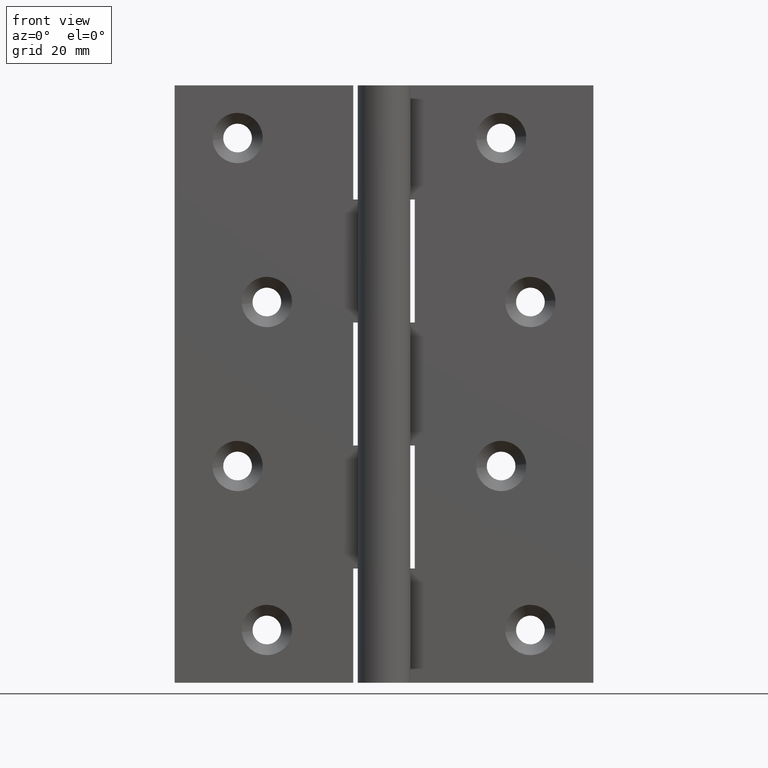
[diagram: clean part render]
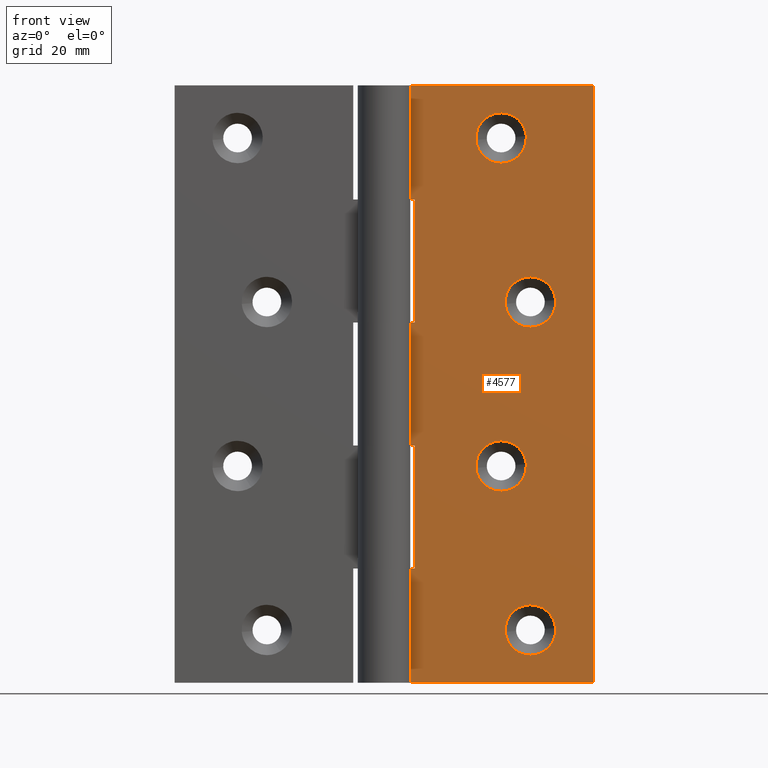
[diagram: same view with one face highlighted and labeled with its STEP entity id]
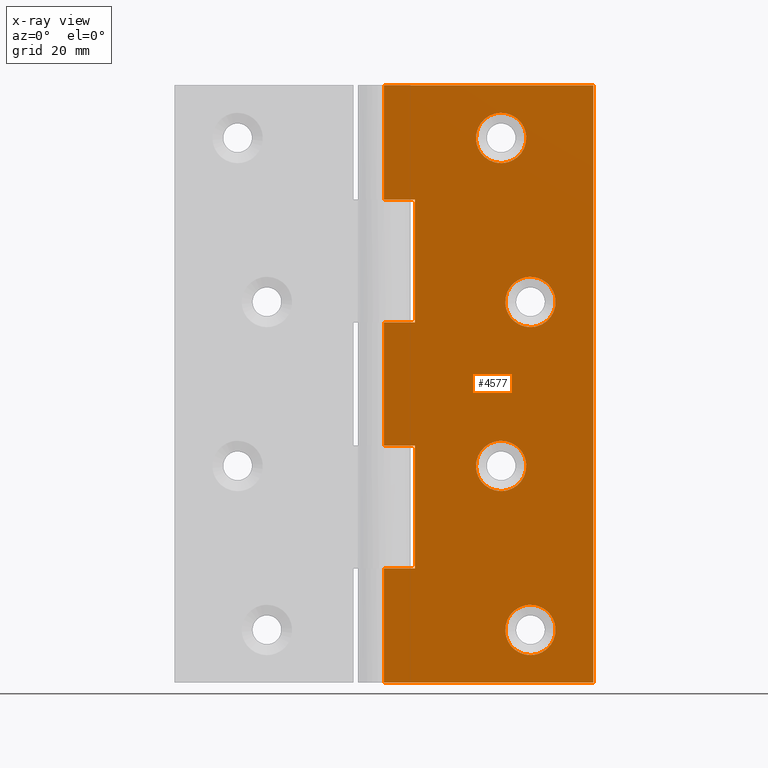
[diagram: x-ray of the same camera — body ghosted, the highlighted face saturated]
A machine part, front view. The second image highlights one B-rep face of the part: STEP entity #4577.
The next image is the same camera in x-ray: the body ghosted, the highlighted face saturated — about 0% of this face is hidden behind the body in this view.
In plain terms, the highlighted face is a freeform B-spline surface patch.
Its self-contained STEP definition (entity closure, byte-faithful):
#2656=CARTESIAN_POINT('',(29.286736546958579,2.499999999944479,9.337382112995051));
#2657=VERTEX_POINT('',#2656);
#2663=CARTESIAN_POINT('',(24.999992000000098,2.500000000000000,13.300008011920930));
#2664=VERTEX_POINT('',#2663);
#2665=CARTESIAN_POINT('',(24.999992000000098,2.500000000000000,13.300008011920930));
#2666=CARTESIAN_POINT('',(28.974871124358167,2.500000000000000,13.300008011920934));
#2667=CARTESIAN_POINT('',(29.286736546958579,2.499999999944480,9.337382112995051));
#2675=(BOUNDED_CURVE()B_SPLINE_CURVE(2,(#2665,#2666,#2667),.UNSPECIFIED.,.F.,.U.)B_SPLINE_CURVE_WITH_KNOTS((3,3),(0.0,0.236331300598724),.UNSPECIFIED.)CURVE()GEOMETRIC_REPRESENTATION_ITEM()RATIONAL_B_SPLINE_CURVE((1.0,0.723120658645081,0.969723356100769))REPRESENTATION_ITEM(''));
#2676=EDGE_CURVE('',#2664,#2657,#2675,.T.);
#2678=CARTESIAN_POINT('',(20.713247453041621,2.499999999944480,8.662633887004951));
#2679=VERTEX_POINT('',#2678);
#2680=CARTESIAN_POINT('',(20.713247453041618,2.499999999944480,8.662633887004951));
#2681=CARTESIAN_POINT('',(20.699991988079166,2.500000000000000,8.831060538971018));
#2682=CARTESIAN_POINT('',(20.699991988079169,2.500000000000000,9.000008000000001));
#2683=CARTESIAN_POINT('',(20.699991988079162,2.500000000000000,13.300008011920934));
#2684=CARTESIAN_POINT('',(24.999992000000098,2.500000000000000,13.300008011920930));
#2692=(BOUNDED_CURVE()B_SPLINE_CURVE(2,(#2680,#2681,#2682,#2683,#2684),.UNSPECIFIED.,.F.,.U.)B_SPLINE_CURVE_WITH_KNOTS((3,2,3),(0.736331300598723,0.750000000000000,1.0),.UNSPECIFIED.)CURVE()GEOMETRIC_REPRESENTATION_ITEM()RATIONAL_B_SPLINE_CURVE((0.969723356100769,0.983986122541466,1.0,0.707106781186548,1.0))REPRESENTATION_ITEM(''));
#2693=EDGE_CURVE('',#2679,#2664,#2692,.T.);
#2730=CARTESIAN_POINT('',(24.999992000000098,2.500000000000000,4.700007988079070));
#2731=VERTEX_POINT('',#2730);
#2732=CARTESIAN_POINT('',(24.999992000000098,2.500000000000000,4.700007988079070));
#2733=CARTESIAN_POINT('',(21.025112875642009,2.500000000000000,4.700007988079070));
#2734=CARTESIAN_POINT('',(20.713247453041614,2.499999999944481,8.662633887004949));
#2742=(BOUNDED_CURVE()B_SPLINE_CURVE(2,(#2732,#2733,#2734),.UNSPECIFIED.,.F.,.U.)B_SPLINE_CURVE_WITH_KNOTS((3,3),(0.500000000000000,0.736331300598724),.UNSPECIFIED.)CURVE()GEOMETRIC_REPRESENTATION_ITEM()RATIONAL_B_SPLINE_CURVE((1.0,0.723120658645080,0.969723356100771))REPRESENTATION_ITEM(''));
#2743=EDGE_CURVE('',#2731,#2679,#2742,.T.);
#2745=CARTESIAN_POINT('',(29.286736546958579,2.499999999944479,9.337382112995051));
#2746=CARTESIAN_POINT('',(29.299992011921031,2.500000000000000,9.168955461028986));
#2747=CARTESIAN_POINT('',(29.299992011921031,2.500000000000000,9.000008000000001));
#2748=CARTESIAN_POINT('',(29.299992011921038,2.500000000000000,4.700007988079069));
#2749=CARTESIAN_POINT('',(24.999992000000098,2.500000000000000,4.700007988079070));
#2757=(BOUNDED_CURVE()B_SPLINE_CURVE(2,(#2745,#2746,#2747,#2748,#2749),.UNSPECIFIED.,.F.,.U.)B_SPLINE_CURVE_WITH_KNOTS((3,2,3),(0.236331300598724,0.250000000000000,0.500000000000000),.UNSPECIFIED.)CURVE()GEOMETRIC_REPRESENTATION_ITEM()RATIONAL_B_SPLINE_CURVE((0.969723356100770,0.983986122541467,1.0,0.707106781186548,1.0))REPRESENTATION_ITEM(''));
#2758=EDGE_CURVE('',#2657,#2731,#2757,.T.);
#2984=CARTESIAN_POINT('',(24.286736546958480,2.499999999944481,37.337382112995051));
#2985=VERTEX_POINT('',#2984);
#2991=CARTESIAN_POINT('',(19.999991999999999,2.500000000000000,41.300008011920930));
#2992=VERTEX_POINT('',#2991);
#2993=CARTESIAN_POINT('',(19.999991999999999,2.500000000000000,41.300008011920930));
#2994=CARTESIAN_POINT('',(23.974871124358064,2.500000000000000,41.300008011920930));
#2995=CARTESIAN_POINT('',(24.286736546958480,2.499999999944480,37.337382112995058));
#3003=(BOUNDED_CURVE()B_SPLINE_CURVE(2,(#2993,#2994,#2995),.UNSPECIFIED.,.F.,.U.)B_SPLINE_CURVE_WITH_KNOTS((3,3),(0.0,0.236331300598724),.UNSPECIFIED.)CURVE()GEOMETRIC_REPRESENTATION_ITEM()RATIONAL_B_SPLINE_CURVE((1.0,0.723120658645081,0.969723356100769))REPRESENTATION_ITEM(''));
#3004=EDGE_CURVE('',#2992,#2985,#3003,.T.);
#3006=CARTESIAN_POINT('',(15.713247453041520,2.499999999944480,36.662633887004958));
#3007=VERTEX_POINT('',#3006);
#3008=CARTESIAN_POINT('',(15.713247453041520,2.499999999944480,36.662633887004958));
#3009=CARTESIAN_POINT('',(15.699991988079072,2.500000000000000,36.831060538971023));
#3010=CARTESIAN_POINT('',(15.699991988079070,2.500000000000000,37.000008000000001));
#3011=CARTESIAN_POINT('',(15.699991988079075,2.500000000000000,41.300008011920937));
#3012=CARTESIAN_POINT('',(19.999991999999999,2.500000000000000,41.300008011920930));
#3020=(BOUNDED_CURVE()B_SPLINE_CURVE(2,(#3008,#3009,#3010,#3011,#3012),.UNSPECIFIED.,.F.,.U.)B_SPLINE_CURVE_WITH_KNOTS((3,2,3),(0.736331300598724,0.750000000000000,1.0),.UNSPECIFIED.)CURVE()GEOMETRIC_REPRESENTATION_ITEM()RATIONAL_B_SPLINE_CURVE((0.969723356100770,0.983986122541467,1.0,0.707106781186548,1.0))REPRESENTATION_ITEM(''));
#3021=EDGE_CURVE('',#3007,#2992,#3020,.T.);
#3058=CARTESIAN_POINT('',(19.999991999999999,2.500000000000000,32.700007988079072));
#3059=VERTEX_POINT('',#3058);
#3060=CARTESIAN_POINT('',(19.999991999999999,2.500000000000000,32.700007988079072));
#3061=CARTESIAN_POINT('',(16.025112875641909,2.500000000000000,32.700007988079079));
#3062=CARTESIAN_POINT('',(15.713247453041518,2.499999999944480,36.662633887004958));
#3070=(BOUNDED_CURVE()B_SPLINE_CURVE(2,(#3060,#3061,#3062),.UNSPECIFIED.,.F.,.U.)B_SPLINE_CURVE_WITH_KNOTS((3,3),(0.500000000000000,0.736331300598724),.UNSPECIFIED.)CURVE()GEOMETRIC_REPRESENTATION_ITEM()RATIONAL_B_SPLINE_CURVE((1.0,0.723120658645080,0.969723356100771))REPRESENTATION_ITEM(''));
#3071=EDGE_CURVE('',#3059,#3007,#3070,.T.);
#3073=CARTESIAN_POINT('',(24.286736546958483,2.499999999944481,37.337382112995051));
#3074=CARTESIAN_POINT('',(24.299992011920935,2.500000000000000,37.168955461028986));
#3075=CARTESIAN_POINT('',(24.299992011920931,2.500000000000000,37.000008000000001));
#3076=CARTESIAN_POINT('',(24.299992011920931,2.500000000000000,32.700007988079079));
#3077=CARTESIAN_POINT('',(19.999991999999999,2.500000000000000,32.700007988079072));
#3085=(BOUNDED_CURVE()B_SPLINE_CURVE(2,(#3073,#3074,#3075,#3076,#3077),.UNSPECIFIED.,.F.,.U.)B_SPLINE_CURVE_WITH_KNOTS((3,2,3),(0.236331300598724,0.250000000000000,0.500000000000000),.UNSPECIFIED.)CURVE()GEOMETRIC_REPRESENTATION_ITEM()RATIONAL_B_SPLINE_CURVE((0.969723356100770,0.983986122541467,1.0,0.707106781186548,1.0))REPRESENTATION_ITEM(''));
#3086=EDGE_CURVE('',#2985,#3059,#3085,.T.);
#3312=CARTESIAN_POINT('',(29.286736546958579,2.499999999944480,65.337382112995044));
#3313=VERTEX_POINT('',#3312);
#3319=CARTESIAN_POINT('',(24.999992000000098,2.500000000000000,69.300008011920937));
#3320=VERTEX_POINT('',#3319);
#3321=CARTESIAN_POINT('',(24.999992000000098,2.500000000000000,69.300008011920937));
#3322=CARTESIAN_POINT('',(28.974871124358160,2.500000000000000,69.300008011920937));
#3323=CARTESIAN_POINT('',(29.286736546958579,2.499999999944480,65.337382112995044));
#3331=(BOUNDED_CURVE()B_SPLINE_CURVE(2,(#3321,#3322,#3323),.UNSPECIFIED.,.F.,.U.)B_SPLINE_CURVE_WITH_KNOTS((3,3),(0.0,0.236331300598723),.UNSPECIFIED.)CURVE()GEOMETRIC_REPRESENTATION_ITEM()RATIONAL_B_SPLINE_CURVE((1.0,0.723120658645081,0.969723356100769))REPRESENTATION_ITEM(''));
#3332=EDGE_CURVE('',#3320,#3313,#3331,.T.);
#3334=CARTESIAN_POINT('',(20.713247453041621,2.499999999944480,64.662633887004944));
#3335=VERTEX_POINT('',#3334);
#3336=CARTESIAN_POINT('',(20.713247453041618,2.499999999944480,64.662633887004944));
#3337=CARTESIAN_POINT('',(20.699991988079166,2.500000000000000,64.831060538971016));
#3338=CARTESIAN_POINT('',(20.699991988079169,2.500000000000000,65.000007999999994));
#3339=CARTESIAN_POINT('',(20.699991988079162,2.500000000000000,69.300008011920937));
#3340=CARTESIAN_POINT('',(24.999992000000098,2.500000000000000,69.300008011920937));
#3348=(BOUNDED_CURVE()B_SPLINE_CURVE(2,(#3336,#3337,#3338,#3339,#3340),.UNSPECIFIED.,.F.,.U.)B_SPLINE_CURVE_WITH_KNOTS((3,2,3),(0.736331300598723,0.750000000000000,1.0),.UNSPECIFIED.)CURVE()GEOMETRIC_REPRESENTATION_ITEM()RATIONAL_B_SPLINE_CURVE((0.969723356100769,0.983986122541466,1.0,0.707106781186548,1.0))REPRESENTATION_ITEM(''));
#3349=EDGE_CURVE('',#3335,#3320,#3348,.T.);
#3386=CARTESIAN_POINT('',(24.999992000000098,2.500000000000000,60.700007988079072));
#3387=VERTEX_POINT('',#3386);
#3388=CARTESIAN_POINT('',(24.999992000000098,2.500000000000000,60.700007988079072));
#3389=CARTESIAN_POINT('',(21.025112875642009,2.500000000000000,60.700007988079079));
#3390=CARTESIAN_POINT('',(20.713247453041614,2.499999999944480,64.662633887004944));
#3398=(BOUNDED_CURVE()B_SPLINE_CURVE(2,(#3388,#3389,#3390),.UNSPECIFIED.,.F.,.U.)B_SPLINE_CURVE_WITH_KNOTS((3,3),(0.500000000000000,0.736331300598724),.UNSPECIFIED.)CURVE()GEOMETRIC_REPRESENTATION_ITEM()RATIONAL_B_SPLINE_CURVE((1.0,0.723120658645080,0.969723356100771))REPRESENTATION_ITEM(''));
#3399=EDGE_CURVE('',#3387,#3335,#3398,.T.);
#3401=CARTESIAN_POINT('',(29.286736546958579,2.499999999944480,65.337382112995044));
#3402=CARTESIAN_POINT('',(29.299992011921031,2.500000000000000,65.168955461028972));
#3403=CARTESIAN_POINT('',(29.299992011921031,2.500000000000000,65.000007999999994));
#3404=CARTESIAN_POINT('',(29.299992011921038,2.500000000000000,60.700007988079072));
#3405=CARTESIAN_POINT('',(24.999992000000098,2.500000000000000,60.700007988079072));
#3413=(BOUNDED_CURVE()B_SPLINE_CURVE(2,(#3401,#3402,#3403,#3404,#3405),.UNSPECIFIED.,.F.,.U.)B_SPLINE_CURVE_WITH_KNOTS((3,2,3),(0.236331300598723,0.250000000000000,0.500000000000000),.UNSPECIFIED.)CURVE()GEOMETRIC_REPRESENTATION_ITEM()RATIONAL_B_SPLINE_CURVE((0.969723356100769,0.983986122541466,1.0,0.707106781186548,1.0))REPRESENTATION_ITEM(''));
#3414=EDGE_CURVE('',#3313,#3387,#3413,.T.);
#3640=CARTESIAN_POINT('',(24.286736546958480,2.499999999944482,93.337397112995063));
#3641=VERTEX_POINT('',#3640);
#3647=CARTESIAN_POINT('',(19.999991999999999,2.500000000000000,97.300023011920942));
#3648=VERTEX_POINT('',#3647);
#3649=CARTESIAN_POINT('',(19.999991999999999,2.500000000000000,97.300023011920942));
#3650=CARTESIAN_POINT('',(23.974871124358053,2.500000000000000,97.300023011920956));
#3651=CARTESIAN_POINT('',(24.286736546958483,2.499999999944482,93.337397112995063));
#3659=(BOUNDED_CURVE()B_SPLINE_CURVE(2,(#3649,#3650,#3651),.UNSPECIFIED.,.F.,.U.)B_SPLINE_CURVE_WITH_KNOTS((3,3),(0.0,0.236331300598723),.UNSPECIFIED.)CURVE()GEOMETRIC_REPRESENTATION_ITEM()RATIONAL_B_SPLINE_CURVE((1.0,0.723120658645082,0.969723356100768))REPRESENTATION_ITEM(''));
#3660=EDGE_CURVE('',#3648,#3641,#3659,.T.);
#3662=CARTESIAN_POINT('',(15.713247453041520,2.499999999944480,92.662648887004934));
#3663=VERTEX_POINT('',#3662);
#3664=CARTESIAN_POINT('',(15.713247453041522,2.499999999944481,92.662648887004934));
#3665=CARTESIAN_POINT('',(15.699991988079068,2.500000000000000,92.831075538971021));
#3666=CARTESIAN_POINT('',(15.699991988079070,2.500000000000000,93.000022999999999));
#3667=CARTESIAN_POINT('',(15.699991988079075,2.500000000000000,97.300023011920942));
#3668=CARTESIAN_POINT('',(19.999991999999999,2.500000000000000,97.300023011920942));
#3676=(BOUNDED_CURVE()B_SPLINE_CURVE(2,(#3664,#3665,#3666,#3667,#3668),.UNSPECIFIED.,.F.,.U.)B_SPLINE_CURVE_WITH_KNOTS((3,2,3),(0.736331300598723,0.750000000000000,1.0),.UNSPECIFIED.)CURVE()GEOMETRIC_REPRESENTATION_ITEM()RATIONAL_B_SPLINE_CURVE((0.969723356100768,0.983986122541466,1.0,0.707106781186548,1.0))REPRESENTATION_ITEM(''));
#3677=EDGE_CURVE('',#3663,#3648,#3676,.T.);
#3714=CARTESIAN_POINT('',(19.999991999999999,2.500000000000000,88.700022988079070));
#3715=VERTEX_POINT('',#3714);
#3716=CARTESIAN_POINT('',(19.999991999999999,2.500000000000000,88.700022988079070));
#3717=CARTESIAN_POINT('',(16.025112875641963,2.500000000000000,88.700022988079070));
#3718=CARTESIAN_POINT('',(15.713247453041520,2.499999999944481,92.662648887004934));
#3726=(BOUNDED_CURVE()B_SPLINE_CURVE(2,(#3716,#3717,#3718),.UNSPECIFIED.,.F.,.U.)B_SPLINE_CURVE_WITH_KNOTS((3,3),(0.500000000000000,0.736331300598722),.UNSPECIFIED.)CURVE()GEOMETRIC_REPRESENTATION_ITEM()RATIONAL_B_SPLINE_CURVE((1.0,0.723120658645083,0.969723356100767))REPRESENTATION_ITEM(''));
#3727=EDGE_CURVE('',#3715,#3663,#3726,.T.);
#3729=CARTESIAN_POINT('',(24.286736546958483,2.499999999944482,93.337397112995063));
#3730=CARTESIAN_POINT('',(24.299992011920935,2.500000000000000,93.168970461028977));
#3731=CARTESIAN_POINT('',(24.299992011920931,2.500000000000000,93.000022999999999));
#3732=CARTESIAN_POINT('',(24.299992011920931,2.500000000000000,88.700022988079070));
#3733=CARTESIAN_POINT('',(19.999991999999999,2.500000000000000,88.700022988079070));
#3741=(BOUNDED_CURVE()B_SPLINE_CURVE(2,(#3729,#3730,#3731,#3732,#3733),.UNSPECIFIED.,.F.,.U.)B_SPLINE_CURVE_WITH_KNOTS((3,2,3),(0.236331300598723,0.250000000000000,0.500000000000000),.UNSPECIFIED.)CURVE()GEOMETRIC_REPRESENTATION_ITEM()RATIONAL_B_SPLINE_CURVE((0.969723356100768,0.983986122541466,1.0,0.707106781186548,1.0))REPRESENTATION_ITEM(''));
#3742=EDGE_CURVE('',#3641,#3715,#3741,.T.);
#3783=CARTESIAN_POINT('',(0.0,2.500000000000000,19.500007999999951));
#3784=VERTEX_POINT('',#3783);
#3804=CARTESIAN_POINT('',(5.250000000000000,2.499999999999945,19.500008000000001));
#3805=VERTEX_POINT('',#3804);
#3806=CARTESIAN_POINT('',(0.0,2.500000000000000,19.500007999999951));
#3807=CARTESIAN_POINT('',(5.250000000000000,2.499999999999945,19.500008000000001));
#3808=QUASI_UNIFORM_CURVE('',1,(#3806,#3807),.UNSPECIFIED.,.F.,.U.);
#3809=EDGE_CURVE('',#3784,#3805,#3808,.T.);
#3861=CARTESIAN_POINT('',(5.250000000000000,2.499999999999945,40.500007999999987));
#3862=VERTEX_POINT('',#3861);
#3868=CARTESIAN_POINT('',(0.0,2.500000000000000,40.500007999999987));
#3869=VERTEX_POINT('',#3868);
#3870=CARTESIAN_POINT('',(5.250000000000000,2.499999999999945,40.500007999999987));
#3871=CARTESIAN_POINT('',(0.0,2.500000000000000,40.500007999999987));
#3872=QUASI_UNIFORM_CURVE('',1,(#3870,#3871),.UNSPECIFIED.,.F.,.U.);
#3873=EDGE_CURVE('',#3862,#3869,#3872,.T.);
#3909=CARTESIAN_POINT('',(5.250000000000000,2.499999999999945,19.500008000000001));
#3910=CARTESIAN_POINT('',(5.250000000000000,2.499999999999945,40.500007999999987));
#3911=QUASI_UNIFORM_CURVE('',1,(#3909,#3910),.UNSPECIFIED.,.F.,.U.);
#3912=EDGE_CURVE('',#3805,#3862,#3911,.T.);
#3959=CARTESIAN_POINT('',(0.0,2.500000000000000,61.500007999999802));
#3960=VERTEX_POINT('',#3959);
#3980=CARTESIAN_POINT('',(5.250000000000000,2.499999999999945,61.500007999999802));
#3981=VERTEX_POINT('',#3980);
#3982=CARTESIAN_POINT('',(5.250000000000000,2.499999999999945,61.500007999999802));
#3983=CARTESIAN_POINT('',(0.0,2.500000000000000,61.500007999999802));
#3984=QUASI_UNIFORM_CURVE('',1,(#3982,#3983),.UNSPECIFIED.,.F.,.U.);
#3985=EDGE_CURVE('',#3981,#3960,#3984,.T.);
#4016=CARTESIAN_POINT('',(5.250000000000000,2.499999999999945,82.500022999999999));
#4017=VERTEX_POINT('',#4016);
#4023=CARTESIAN_POINT('',(0.0,2.500000000000000,82.500022999999999));
#4024=VERTEX_POINT('',#4023);
#4025=CARTESIAN_POINT('',(0.0,2.500000000000000,82.500022999999999));
#4026=CARTESIAN_POINT('',(5.250000000000000,2.499999999999945,82.500022999999999));
#4027=QUASI_UNIFORM_CURVE('',1,(#4025,#4026),.UNSPECIFIED.,.F.,.U.);
#4028=EDGE_CURVE('',#4024,#4017,#4027,.T.);
#4092=CARTESIAN_POINT('',(5.250000000000000,2.499999999999945,82.500022999999999));
#4093=CARTESIAN_POINT('',(5.250000000000000,2.499999999999945,61.500007999999802));
#4094=QUASI_UNIFORM_CURVE('',1,(#4092,#4093),.UNSPECIFIED.,.F.,.U.);
#4095=EDGE_CURVE('',#4017,#3981,#4094,.T.);
#4135=CARTESIAN_POINT('',(0.0,2.500000000000000,102.000007999999990));
#4136=VERTEX_POINT('',#4135);
#4156=CARTESIAN_POINT('',(35.749991999999999,2.500000000000000,102.000007999999990));
#4157=VERTEX_POINT('',#4156);
#4158=CARTESIAN_POINT('',(35.749991999999999,2.500000000000000,102.000007999999990));
#4159=CARTESIAN_POINT('',(0.0,2.500000000000000,102.000007999999990));
#4160=QUASI_UNIFORM_CURVE('',1,(#4158,#4159),.UNSPECIFIED.,.F.,.U.);
#4161=EDGE_CURVE('',#4157,#4136,#4160,.T.);
#4213=CARTESIAN_POINT('',(35.749991999999999,2.500000000000000,0.0));
#4214=VERTEX_POINT('',#4213);
#4220=CARTESIAN_POINT('',(0.0,2.500000000000000,0.0));
#4221=VERTEX_POINT('',#4220);
#4222=CARTESIAN_POINT('',(35.749991999999999,2.500000000000000,0.0));
#4223=CARTESIAN_POINT('',(0.0,2.500000000000000,0.0));
#4224=QUASI_UNIFORM_CURVE('',1,(#4222,#4223),.UNSPECIFIED.,.F.,.U.);
#4225=EDGE_CURVE('',#4214,#4221,#4224,.T.);
#4262=CARTESIAN_POINT('',(35.749991999999999,2.500000000000000,0.0));
#4263=CARTESIAN_POINT('',(35.749991999999999,2.500000000000000,102.000007999999990));
#4264=QUASI_UNIFORM_CURVE('',1,(#4262,#4263),.UNSPECIFIED.,.F.,.U.);
#4265=EDGE_CURVE('',#4214,#4157,#4264,.T.);
#4352=CARTESIAN_POINT('',(0.0,2.500000000000000,82.500022999999999));
#4353=CARTESIAN_POINT('',(0.0,2.500000000000000,102.000007999999990));
#4354=QUASI_UNIFORM_CURVE('',1,(#4352,#4353),.UNSPECIFIED.,.F.,.U.);
#4355=EDGE_CURVE('',#4024,#4136,#4354,.T.);
#4424=CARTESIAN_POINT('',(0.0,2.500000000000000,0.0));
#4425=CARTESIAN_POINT('',(0.0,2.500000000000000,19.500007999999951));
#4426=QUASI_UNIFORM_CURVE('',1,(#4424,#4425),.UNSPECIFIED.,.F.,.U.);
#4427=EDGE_CURVE('',#4221,#3784,#4426,.T.);
#4459=CARTESIAN_POINT('',(0.0,2.500000000000000,40.500007999999987));
#4460=CARTESIAN_POINT('',(0.0,2.500000000000000,61.500007999999802));
#4461=QUASI_UNIFORM_CURVE('',1,(#4459,#4460),.UNSPECIFIED.,.F.,.U.);
#4462=EDGE_CURVE('',#3869,#3960,#4461,.T.);
#4534=CARTESIAN_POINT('',(-1.785712031109580,2.500000000000000,-5.094900201904192));
#4535=CARTESIAN_POINT('',(-1.785712031109580,2.500000000000000,107.094910937757600));
#4536=CARTESIAN_POINT('',(37.535704989999083,2.500000000000000,-5.094900201904192));
#4537=CARTESIAN_POINT('',(37.535704989999083,2.500000000000000,107.094910937757600));
#4538=B_SPLINE_SURFACE_WITH_KNOTS('',1,1,((#4534,#4536),(#4535,#4537)),.UNSPECIFIED.,.F.,.F.,.U.,(2,2),(2,2),(0.0,112.189811139661800),(0.0,39.321417021108672),.UNSPECIFIED.);
#4539=ORIENTED_EDGE('',*,*,#3873,.F.);
#4540=ORIENTED_EDGE('',*,*,#3912,.F.);
#4541=ORIENTED_EDGE('',*,*,#3809,.F.);
#4542=ORIENTED_EDGE('',*,*,#4427,.F.);
#4543=ORIENTED_EDGE('',*,*,#4225,.F.);
#4544=ORIENTED_EDGE('',*,*,#4265,.T.);
#4545=ORIENTED_EDGE('',*,*,#4161,.T.);
#4546=ORIENTED_EDGE('',*,*,#4355,.F.);
#4547=ORIENTED_EDGE('',*,*,#4028,.T.);
#4548=ORIENTED_EDGE('',*,*,#4095,.T.);
#4549=ORIENTED_EDGE('',*,*,#3985,.T.);
#4550=ORIENTED_EDGE('',*,*,#4462,.F.);
#4551=EDGE_LOOP('',(#4539,#4540,#4541,#4542,#4543,#4544,#4545,#4546,#4547,#4548,#4549,#4550));
#4552=FACE_OUTER_BOUND('',#4551,.T.);
#4553=ORIENTED_EDGE('',*,*,#3727,.T.);
#4554=ORIENTED_EDGE('',*,*,#3677,.T.);
#4555=ORIENTED_EDGE('',*,*,#3660,.T.);
#4556=ORIENTED_EDGE('',*,*,#3742,.T.);
#4557=EDGE_LOOP('',(#4553,#4554,#4555,#4556));
#4558=FACE_BOUND('',#4557,.T.);
#4559=ORIENTED_EDGE('',*,*,#3399,.T.);
#4560=ORIENTED_EDGE('',*,*,#3349,.T.);
#4561=ORIENTED_EDGE('',*,*,#3332,.T.);
#4562=ORIENTED_EDGE('',*,*,#3414,.T.);
#4563=EDGE_LOOP('',(#4559,#4560,#4561,#4562));
#4564=FACE_BOUND('',#4563,.T.);
#4565=ORIENTED_EDGE('',*,*,#3071,.T.);
#4566=ORIENTED_EDGE('',*,*,#3021,.T.);
#4567=ORIENTED_EDGE('',*,*,#3004,.T.);
#4568=ORIENTED_EDGE('',*,*,#3086,.T.);
#4569=EDGE_LOOP('',(#4565,#4566,#4567,#4568));
#4570=FACE_BOUND('',#4569,.T.);
#4571=ORIENTED_EDGE('',*,*,#2743,.T.);
#4572=ORIENTED_EDGE('',*,*,#2693,.T.);
#4573=ORIENTED_EDGE('',*,*,#2676,.T.);
#4574=ORIENTED_EDGE('',*,*,#2758,.T.);
#4575=EDGE_LOOP('',(#4571,#4572,#4573,#4574));
#4576=FACE_BOUND('',#4575,.T.);
#4577=ADVANCED_FACE('',(#4552,#4558,#4564,#4570,#4576),#4538,.F.);